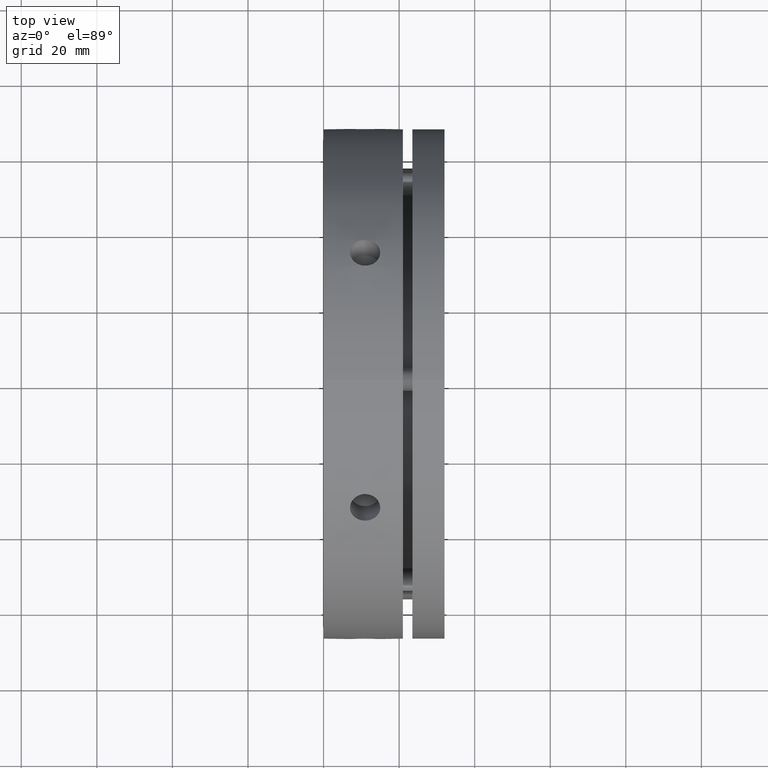
[diagram: clean part render]
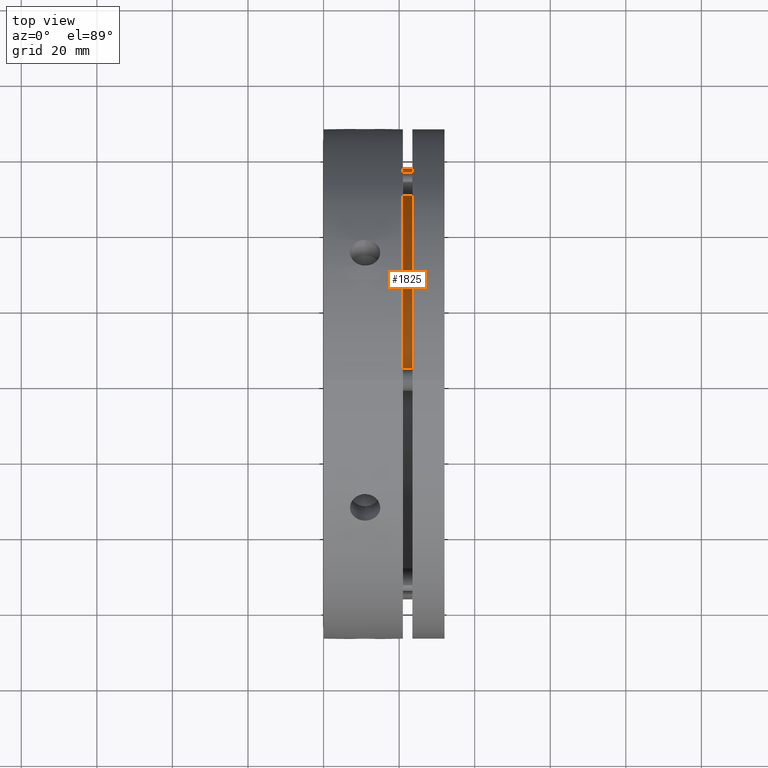
[diagram: same view with one face highlighted and labeled with its STEP entity id]
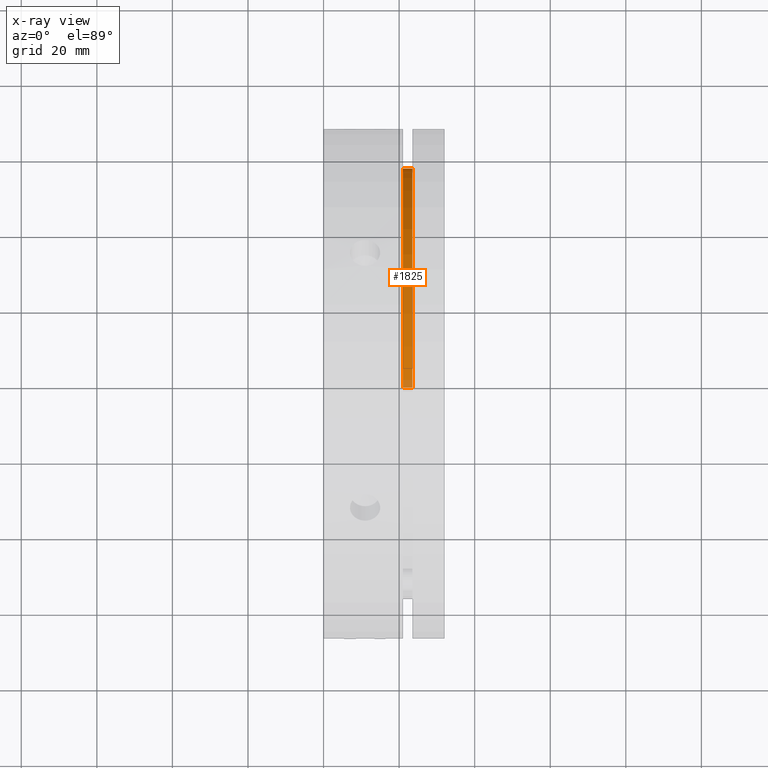
[diagram: x-ray of the same camera — body ghosted, the highlighted face saturated]
A machine part, top view. The second image highlights one B-rep face of the part: STEP entity #1825.
The next image is the same camera in x-ray: the body ghosted, the highlighted face saturated — about 3% of this face is hidden behind the body in this view.
In plain terms, the highlighted cylindrical surface (partial cylindrical patch) has radius 57 mm, axis along (-1, 0, 0).
Its self-contained STEP definition (entity closure, byte-faithful):
#50 = ORIENTED_EDGE ( 'NONE', *, *, #4515, .T. ) ;
#53 = ORIENTED_EDGE ( 'NONE', *, *, #4514, .F. ) ;
#136 = EDGE_LOOP ( 'NONE', ( #818, #229, #50, #53 ) ) ;
#229 = ORIENTED_EDGE ( 'NONE', *, *, #4516, .T. ) ;
#392 = VECTOR ( 'NONE', #3732, 1000.000000000000000 ) ;
#393 = CIRCLE ( 'NONE', #520, 57.00000000000000000 ) ;
#395 = LINE ( 'NONE', #3731, #392 ) ;
#397 = LINE ( 'NONE', #3734, #2286 ) ;
#519 = AXIS2_PLACEMENT_3D ( 'NONE', #3739, #3740, #3741 ) ;
#520 = AXIS2_PLACEMENT_3D ( 'NONE', #3735, #3736, #3737 ) ;
#818 = ORIENTED_EDGE ( 'NONE', *, *, #4517, .T. ) ;
#1781 = DIRECTION ( 'NONE',  ( 0.0000000000000000000, 0.0000000000000000000, 1.000000000000000000 ) ) ;
#1783 = DIRECTION ( 'NONE',  ( -1.000000000000000000, 0.0000000000000000000, 0.0000000000000000000 ) ) ;
#1785 = CARTESIAN_POINT ( 'NONE',  ( 22.24999999999998600, 0.0000000000000000000, 0.0000000000000000000 ) ) ;
#1825 = ADVANCED_FACE ( 'NONE', ( #4463 ), #4460, .T. ) ;
#2058 = VERTEX_POINT ( 'NONE', #3228 ) ;
#2059 = VERTEX_POINT ( 'NONE', #3229 ) ;
#2062 = VERTEX_POINT ( 'NONE', #3232 ) ;
#2068 = VERTEX_POINT ( 'NONE', #3238 ) ;
#2284 = CIRCLE ( 'NONE', #519, 57.00000000000000000 ) ;
#2286 = VECTOR ( 'NONE', #3729, 1000.000000000000000 ) ;
#2688 = AXIS2_PLACEMENT_3D ( 'NONE', #1785, #1783, #1781 ) ;
#3228 = CARTESIAN_POINT ( 'NONE',  ( 20.99999999999998600, 0.0000000000000000000, 57.00000000000000000 ) ) ;
#3229 = CARTESIAN_POINT ( 'NONE',  ( 20.99999999999998600, 6.980486755139912900E-015, -57.00000000000000000 ) ) ;
#3232 = CARTESIAN_POINT ( 'NONE',  ( 23.49999999999998600, 0.0000000000000000000, 57.00000000000000000 ) ) ;
#3238 = CARTESIAN_POINT ( 'NONE',  ( 23.49999999999998600, 6.980486755139912900E-015, -57.00000000000000000 ) ) ;
#3729 = DIRECTION ( 'NONE',  ( -1.000000000000000000, 0.0000000000000000000, 0.0000000000000000000 ) ) ;
#3731 = CARTESIAN_POINT ( 'NONE',  ( 22.24999999999998600, 0.0000000000000000000, 57.00000000000000000 ) ) ;
#3732 = DIRECTION ( 'NONE',  ( -1.000000000000000000, 0.0000000000000000000, 0.0000000000000000000 ) ) ;
#3734 = CARTESIAN_POINT ( 'NONE',  ( 22.24999999999998600, 6.980486755139912900E-015, -57.00000000000000000 ) ) ;
#3735 = CARTESIAN_POINT ( 'NONE',  ( 20.99999999999998600, 0.0000000000000000000, 0.0000000000000000000 ) ) ;
#3736 = DIRECTION ( 'NONE',  ( 1.000000000000000000, -0.0000000000000000000, -0.0000000000000000000 ) ) ;
#3737 = DIRECTION ( 'NONE',  ( 0.0000000000000000000, 0.0000000000000000000, 1.000000000000000000 ) ) ;
#3739 = CARTESIAN_POINT ( 'NONE',  ( 23.49999999999998600, 0.0000000000000000000, 0.0000000000000000000 ) ) ;
#3740 = DIRECTION ( 'NONE',  ( -1.000000000000000000, 0.0000000000000000000, 0.0000000000000000000 ) ) ;
#3741 = DIRECTION ( 'NONE',  ( 0.0000000000000000000, 0.0000000000000000000, 1.000000000000000000 ) ) ;
#4460 = CYLINDRICAL_SURFACE ( 'NONE', #2688, 57.00000000000000000 ) ;
#4463 = FACE_OUTER_BOUND ( 'NONE', #136, .T. ) ;
#4514 = EDGE_CURVE ( 'NONE', #2062, #2058, #395, .T. ) ;
#4515 = EDGE_CURVE ( 'NONE', #2059, #2058, #393, .T. ) ;
#4516 = EDGE_CURVE ( 'NONE', #2068, #2059, #397, .T. ) ;
#4517 = EDGE_CURVE ( 'NONE', #2062, #2068, #2284, .T. ) ;